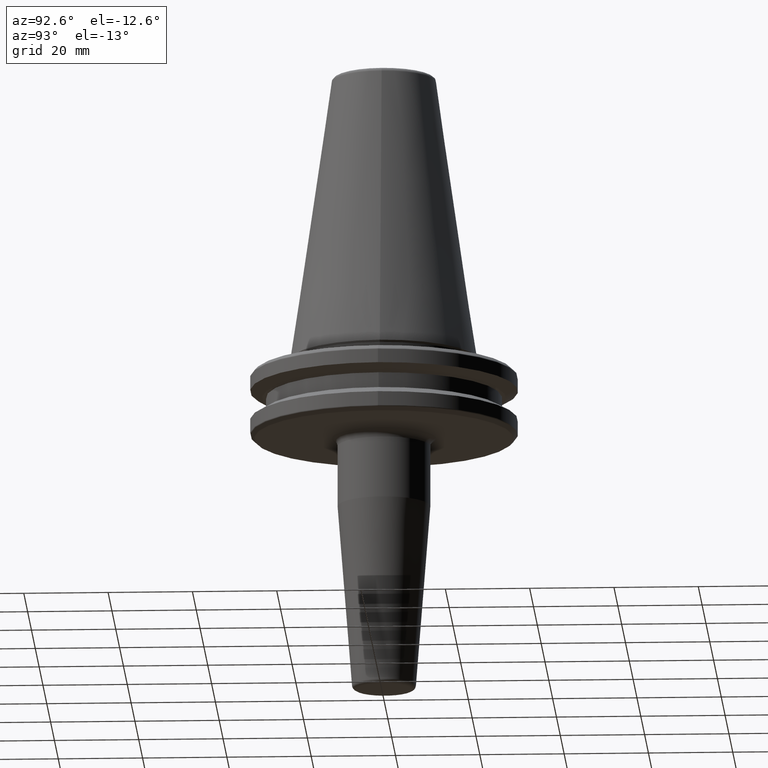
[diagram: clean part render]
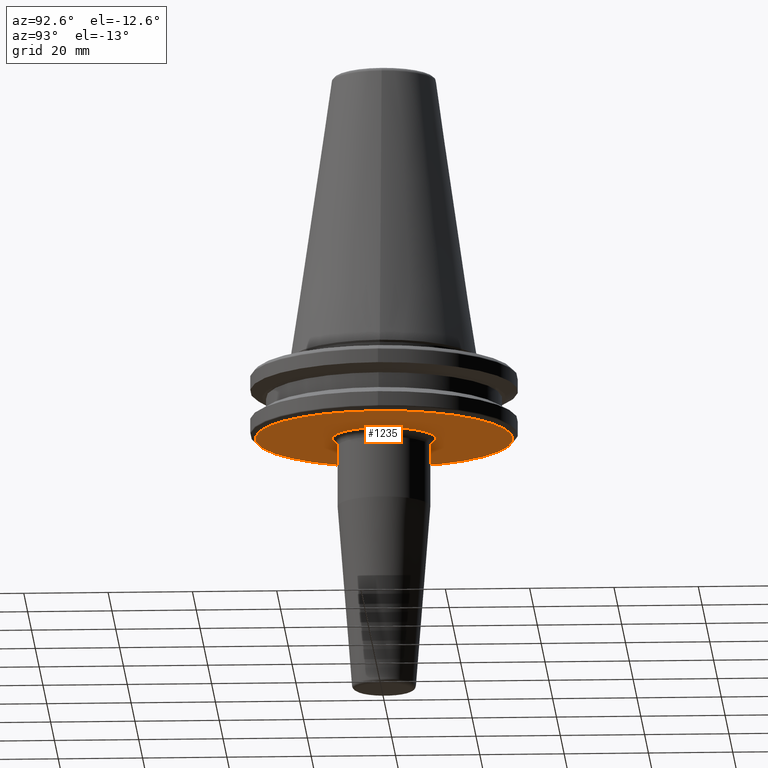
[diagram: same view with one face highlighted and labeled with its STEP entity id]
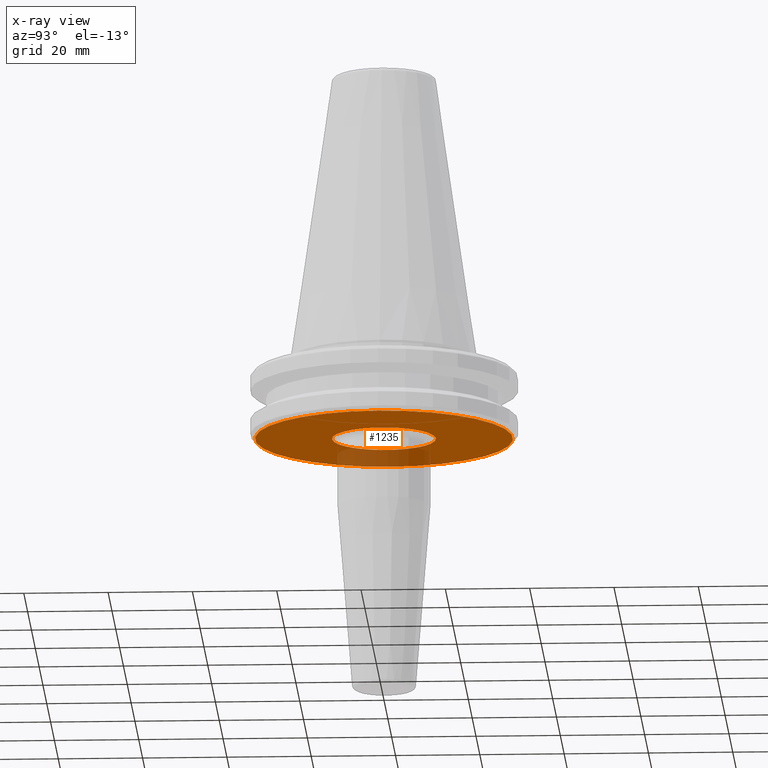
[diagram: x-ray of the same camera — body ghosted, the highlighted face saturated]
A machine part, auxiliary view. The second image highlights one B-rep face of the part: STEP entity #1235.
The next image is the same camera in x-ray: the body ghosted, the highlighted face saturated — about 16% of this face is hidden behind the body in this view.
In plain terms, the highlighted planar face has unit normal (0, 0, -1).
Its self-contained STEP definition (entity closure, byte-faithful):
#2 = CARTESIAN_POINT ( 'NONE',  ( 0.0000000000000000000, -1.734723475976807100E-014, -19.10000000000000500 ) ) ;
#3 = FACE_OUTER_BOUND ( 'NONE', #611, .T. ) ;
#99 = CARTESIAN_POINT ( 'NONE',  ( -30.58431457505076500, 3.762817415969875600E-015, -19.10000000000000500 ) ) ;
#101 = DIRECTION ( 'NONE',  ( 1.000000000000000000, 0.0000000000000000000, 0.0000000000000000000 ) ) ;
#126 = CARTESIAN_POINT ( 'NONE',  ( 0.0000000000000000000, -1.734723475976807100E-014, -19.10000000000000500 ) ) ;
#129 = VERTEX_POINT ( 'NONE', #99 ) ;
#146 = CARTESIAN_POINT ( 'NONE',  ( 30.58431457505076500, 0.0000000000000000000, -19.10000000000000500 ) ) ;
#203 = CARTESIAN_POINT ( 'NONE',  ( 0.0000000000000000000, 12.32553478956934300, -19.10000000000000500 ) ) ;
#208 = CARTESIAN_POINT ( 'NONE',  ( 1.509442672782547700E-015, -12.32553478956938900, -19.10000000000000500 ) ) ;
#226 = DIRECTION ( 'NONE',  ( 0.0000000000000000000, 0.0000000000000000000, -1.000000000000000000 ) ) ;
#245 = CARTESIAN_POINT ( 'NONE',  ( 0.0000000000000000000, 0.0000000000000000000, -19.10000000000000500 ) ) ;
#272 = CIRCLE ( 'NONE', #1092, 30.58431457505076500 ) ;
#319 = DIRECTION ( 'NONE',  ( 1.000000000000000000, 0.0000000000000000000, 0.0000000000000000000 ) ) ;
#352 = DIRECTION ( 'NONE',  ( -0.0000000000000000000, -0.0000000000000000000, 1.000000000000000000 ) ) ;
#438 = VERTEX_POINT ( 'NONE', #203 ) ;
#449 = CIRCLE ( 'NONE', #834, 12.32553478956936600 ) ;
#464 = VERTEX_POINT ( 'NONE', #208 ) ;
#484 = ORIENTED_EDGE ( 'NONE', *, *, #697, .F. ) ;
#611 = EDGE_LOOP ( 'NONE', ( #666, #1187 ) ) ;
#629 = DIRECTION ( 'NONE',  ( -1.000000000000000000, 0.0000000000000000000, -0.0000000000000000000 ) ) ;
#630 = DIRECTION ( 'NONE',  ( 1.000000000000000000, 0.0000000000000000000, 0.0000000000000000000 ) ) ;
#638 = EDGE_CURVE ( 'NONE', #129, #759, #272, .T. ) ;
#666 = ORIENTED_EDGE ( 'NONE', *, *, #753, .F. ) ;
#675 = CIRCLE ( 'NONE', #1021, 12.32553478956936600 ) ;
#677 = DIRECTION ( 'NONE',  ( 0.0000000000000000000, 0.0000000000000000000, -1.000000000000000000 ) ) ;
#697 = EDGE_CURVE ( 'NONE', #438, #464, #449, .T. ) ;
#707 = ORIENTED_EDGE ( 'NONE', *, *, #1089, .F. ) ;
#725 = DIRECTION ( 'NONE',  ( 1.000000000000000000, 0.0000000000000000000, 0.0000000000000000000 ) ) ;
#742 = AXIS2_PLACEMENT_3D ( 'NONE', #904, #1207, #629 ) ;
#753 = EDGE_CURVE ( 'NONE', #759, #129, #1145, .T. ) ;
#759 = VERTEX_POINT ( 'NONE', #146 ) ;
#807 = PLANE ( 'NONE',  #742 ) ;
#816 = CARTESIAN_POINT ( 'NONE',  ( 0.0000000000000000000, 0.0000000000000000000, -19.10000000000000500 ) ) ;
#834 = AXIS2_PLACEMENT_3D ( 'NONE', #126, #226, #319 ) ;
#904 = CARTESIAN_POINT ( 'NONE',  ( 0.0000000000000000000, 2.166680460328873200E-015, -19.10000000000000500 ) ) ;
#918 = DIRECTION ( 'NONE',  ( -0.0000000000000000000, -0.0000000000000000000, 1.000000000000000000 ) ) ;
#1021 = AXIS2_PLACEMENT_3D ( 'NONE', #2, #677, #101 ) ;
#1082 = AXIS2_PLACEMENT_3D ( 'NONE', #816, #918, #725 ) ;
#1089 = EDGE_CURVE ( 'NONE', #464, #438, #675, .T. ) ;
#1092 = AXIS2_PLACEMENT_3D ( 'NONE', #245, #352, #630 ) ;
#1145 = CIRCLE ( 'NONE', #1082, 30.58431457505076500 ) ;
#1149 = EDGE_LOOP ( 'NONE', ( #484, #707 ) ) ;
#1187 = ORIENTED_EDGE ( 'NONE', *, *, #638, .F. ) ;
#1207 = DIRECTION ( 'NONE',  ( 0.0000000000000000000, 0.0000000000000000000, -1.000000000000000000 ) ) ;
#1235 = ADVANCED_FACE ( 'NONE', ( #1237, #3 ), #807, .T. ) ;
#1237 = FACE_BOUND ( 'NONE', #1149, .T. ) ;